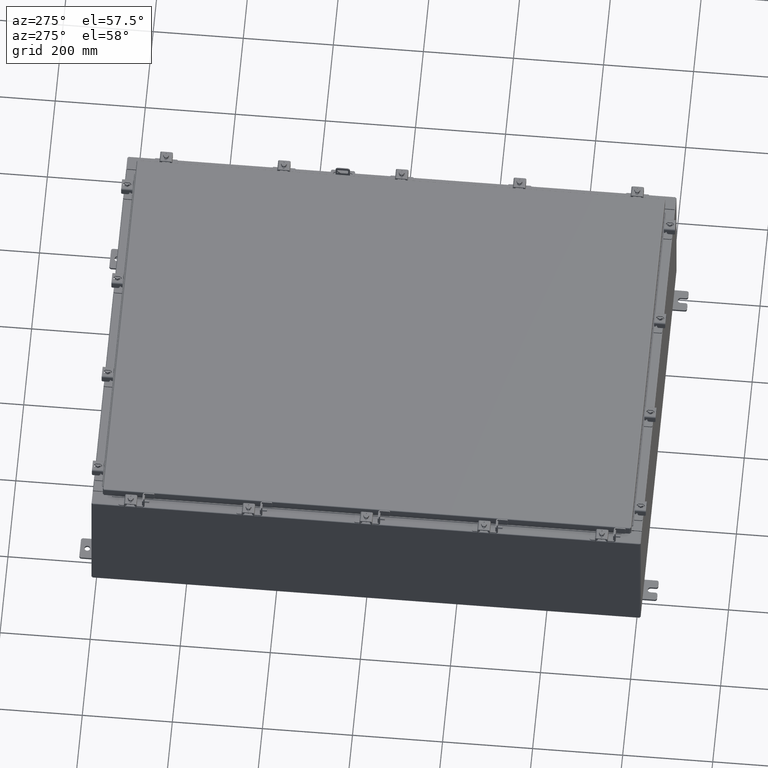
[diagram: clean part render]
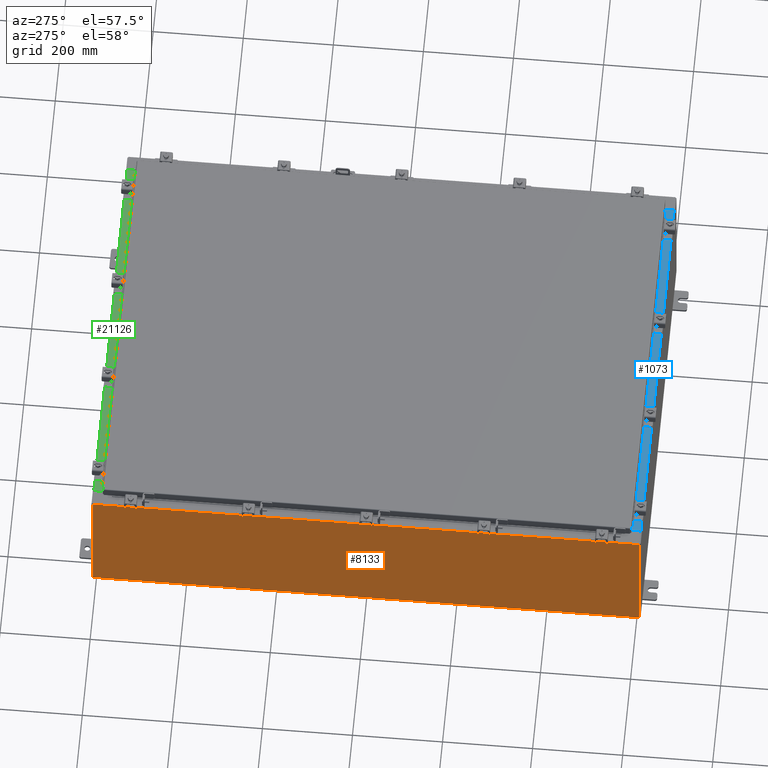
[diagram: same view with three faces highlighted in distinct colors, each labeled with its STEP entity id]
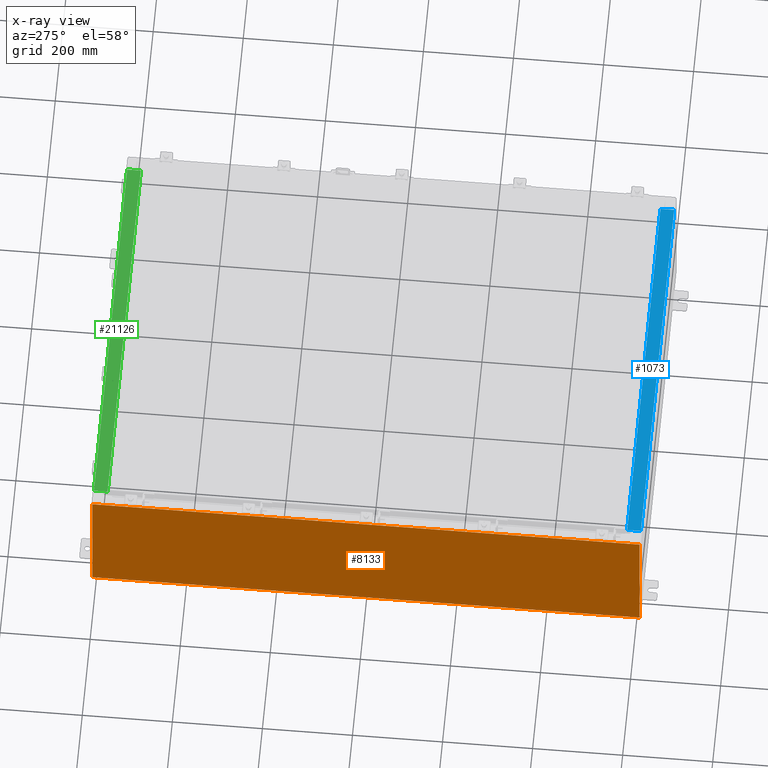
[diagram: x-ray of the same camera — body ghosted, the three highlighted faces saturated]
A machine part, auxiliary view with three faces highlighted in distinct colors.
The next image is the same camera in x-ray (body ghosted, the three faces saturated) — at least one of them is partly hidden behind the body in this view.
Their STEP definitions:

[orange] entity #8133 — the highlighted planar face has unit normal (1, 0, 0).
#45 = CARTESIAN_POINT ( 'NONE',  ( -18.00000000000004600, 23.92529999999998900, 11.83760000000000200 ) ) ;
#607 = CARTESIAN_POINT ( 'NONE',  ( -18.00000000000000400, 23.92529999999998900, -6.293710784286998800E-014 ) ) ;
#1107 = VECTOR ( 'NONE', #2758, 39.37007874015748100 ) ;
#2758 = DIRECTION ( 'NONE',  ( 3.482016343714355500E-015, 0.0000000000000000000, -1.000000000000000000 ) ) ;
#3565 = VECTOR ( 'NONE', #8905, 39.37007874015748100 ) ;
#3626 = VECTOR ( 'NONE', #16057, 39.37007874015748100 ) ;
#6783 = LINE ( 'NONE', #607, #1107 ) ;
#7233 = EDGE_CURVE ( 'NONE', #25267, #20505, #15598, .T. ) ;
#7240 = ORIENTED_EDGE ( 'NONE', *, *, #26393, .T. ) ;
#7644 = ORIENTED_EDGE ( 'NONE', *, *, #20166, .T. ) ;
#8133 = ADVANCED_FACE ( 'NONE', ( #25690 ), #16284, .F. ) ;
#8548 = LINE ( 'NONE', #26541, #14217 ) ;
#8905 = DIRECTION ( 'NONE',  ( -0.0000000000000000000, 1.000000000000000000, -0.0000000000000000000 ) ) ;
#10700 = ORIENTED_EDGE ( 'NONE', *, *, #7233, .T. ) ;
#12404 = CARTESIAN_POINT ( 'NONE',  ( -18.00000000000000400, -23.92529999999998600, 0.01299999999999984700 ) ) ;
#13313 = CARTESIAN_POINT ( 'NONE',  ( -18.00000000000004600, -23.92529999999998600, 11.83760000000000200 ) ) ;
#13987 = VERTEX_POINT ( 'NONE', #12404 ) ;
#14217 = VECTOR ( 'NONE', #18236, 39.37007874015748100 ) ;
#14251 = DIRECTION ( 'NONE',  ( 3.482016343714355100E-015, 0.0000000000000000000, -1.000000000000000000 ) ) ;
#14860 = LINE ( 'NONE', #25751, #3565 ) ;
#15598 = LINE ( 'NONE', #24282, #3626 ) ;
#16057 = DIRECTION ( 'NONE',  ( 0.0000000000000000000, 1.000000000000000000, 0.0000000000000000000 ) ) ;
#16284 = PLANE ( 'NONE',  #17132 ) ;
#17132 = AXIS2_PLACEMENT_3D ( 'NONE', #20517, #26788, #14251 ) ;
#18236 = DIRECTION ( 'NONE',  ( -3.482016343714355500E-015, 0.0000000000000000000, 1.000000000000000000 ) ) ;
#20166 = EDGE_CURVE ( 'NONE', #13987, #25267, #8548, .T. ) ;
#20505 = VERTEX_POINT ( 'NONE', #45 ) ;
#20517 = CARTESIAN_POINT ( 'NONE',  ( -18.00000000000000400, 0.0000000000000000000, -6.293710784286998800E-014 ) ) ;
#20951 = CARTESIAN_POINT ( 'NONE',  ( -18.00000000000000400, 23.92529999999998900, 0.01299999999999984700 ) ) ;
#21968 = EDGE_LOOP ( 'NONE', ( #10700, #7240, #27121, #7644 ) ) ;
#23507 = EDGE_CURVE ( 'NONE', #13987, #25537, #14860, .T. ) ;
#24282 = CARTESIAN_POINT ( 'NONE',  ( -18.00000000000004600, -23.92529999999998900, 11.83760000000000200 ) ) ;
#25267 = VERTEX_POINT ( 'NONE', #13313 ) ;
#25537 = VERTEX_POINT ( 'NONE', #20951 ) ;
#25690 = FACE_OUTER_BOUND ( 'NONE', #21968, .T. ) ;
#25751 = CARTESIAN_POINT ( 'NONE',  ( -18.00000000000000400, 23.92529999999998900, 0.01299999999999984700 ) ) ;
#26393 = EDGE_CURVE ( 'NONE', #20505, #25537, #6783, .T. ) ;
#26541 = CARTESIAN_POINT ( 'NONE',  ( -18.00000000000000400, -23.92529999999999600, -6.293710784286998800E-014 ) ) ;
#26788 = DIRECTION ( 'NONE',  ( 1.000000000000000000, 0.0000000000000000000, 3.482016343714355100E-015 ) ) ;
#27121 = ORIENTED_EDGE ( 'NONE', *, *, #23507, .F. ) ;

[blue] entity #1073 — the highlighted planar face has unit normal (-0, -0, 1).
#131 = FACE_OUTER_BOUND ( 'NONE', #24281, .T. ) ;
#521 = CARTESIAN_POINT ( 'NONE',  ( -16.63719999999999600, -0.08769999999999972300, 5.999999999999999100 ) ) ;
#1073 = ADVANCED_FACE ( 'NONE', ( #131 ), #6994, .T. ) ;
#1385 = DIRECTION ( 'NONE',  ( 0.0000000000000000000, 2.674785894579892700E-015, 1.000000000000000000 ) ) ;
#1614 = VERTEX_POINT ( 'NONE', #22581 ) ;
#2146 = LINE ( 'NONE', #19265, #2831 ) ;
#2831 = VECTOR ( 'NONE', #21356, 39.37007874015748100 ) ;
#3745 = ORIENTED_EDGE ( 'NONE', *, *, #6823, .F. ) ;
#6823 = EDGE_CURVE ( 'NONE', #27214, #27044, #10815, .T. ) ;
#6994 = PLANE ( 'NONE',  #24080 ) ;
#7422 = ORIENTED_EDGE ( 'NONE', *, *, #10181, .F. ) ;
#8981 = CARTESIAN_POINT ( 'NONE',  ( 16.63720000000000400, -1.300299999999999800, 6.000000000000003600 ) ) ;
#10181 = EDGE_CURVE ( 'NONE', #27044, #21892, #2146, .T. ) ;
#10663 = CARTESIAN_POINT ( 'NONE',  ( 16.63720000000000400, -1.287299999999999400, 6.000000000000001800 ) ) ;
#10815 = LINE ( 'NONE', #10663, #11481 ) ;
#11481 = VECTOR ( 'NONE', #25378, 39.37007874015748100 ) ;
#11677 = LINE ( 'NONE', #8981, #12351 ) ;
#11970 = CARTESIAN_POINT ( 'NONE',  ( -5.156971724347648400E-018, -0.08769999999999972300, 5.999999999999999100 ) ) ;
#12351 = VECTOR ( 'NONE', #23725, 39.37007874015748100 ) ;
#14233 = CARTESIAN_POINT ( 'NONE',  ( -2.276882898771239300E-018, 1.610972251716581800E-014, 5.999999999999999100 ) ) ;
#14247 = VECTOR ( 'NONE', #24571, 39.37007874015748100 ) ;
#17470 = EDGE_CURVE ( 'NONE', #1614, #27214, #11677, .T. ) ;
#17943 = CARTESIAN_POINT ( 'NONE',  ( 16.63720000000000400, -1.287299999999999400, 6.000000000000003600 ) ) ;
#19265 = CARTESIAN_POINT ( 'NONE',  ( -16.63719999999999600, -0.07469999999999973900, 5.999999999999999100 ) ) ;
#19340 = CARTESIAN_POINT ( 'NONE',  ( -16.63719999999999600, -1.287299999999998600, 6.000000000000002700 ) ) ;
#19534 = EDGE_CURVE ( 'NONE', #1614, #21892, #21161, .T. ) ;
#20320 = ORIENTED_EDGE ( 'NONE', *, *, #19534, .T. ) ;
#20814 = ORIENTED_EDGE ( 'NONE', *, *, #17470, .F. ) ;
#21161 = LINE ( 'NONE', #11970, #14247 ) ;
#21356 = DIRECTION ( 'NONE',  ( -0.0000000000000000000, 1.000000000000000000, -2.674785894579892700E-015 ) ) ;
#21892 = VERTEX_POINT ( 'NONE', #521 ) ;
#22581 = CARTESIAN_POINT ( 'NONE',  ( 16.63720000000000400, -0.08769999999999948700, 5.999999999999999100 ) ) ;
#23725 = DIRECTION ( 'NONE',  ( -0.0000000000000000000, -1.000000000000000000, 3.566381192773190000E-015 ) ) ;
#24060 = DIRECTION ( 'NONE',  ( 0.0000000000000000000, -1.000000000000000000, 2.674785894579892700E-015 ) ) ;
#24080 = AXIS2_PLACEMENT_3D ( 'NONE', #14233, #1385, #24060 ) ;
#24281 = EDGE_LOOP ( 'NONE', ( #7422, #3745, #20814, #20320 ) ) ;
#24571 = DIRECTION ( 'NONE',  ( -1.000000000000000000, 3.284023746380717400E-017, -8.784060394284559800E-032 ) ) ;
#25378 = DIRECTION ( 'NONE',  ( -1.000000000000000000, 0.0000000000000000000, 0.0000000000000000000 ) ) ;
#27044 = VERTEX_POINT ( 'NONE', #19340 ) ;
#27214 = VERTEX_POINT ( 'NONE', #17943 ) ;

[green] entity #21126 — the highlighted planar face has unit normal (0, 0, 1).
#304 = EDGE_CURVE ( 'NONE', #21248, #24351, #494, .T. ) ;
#494 = LINE ( 'NONE', #15694, #6151 ) ;
#829 = CARTESIAN_POINT ( 'NONE',  ( -16.63719999999999600, -1.287299999999998600, 6.000000000000002700 ) ) ;
#2089 = EDGE_CURVE ( 'NONE', #26187, #24351, #7056, .T. ) ;
#4355 = DIRECTION ( 'NONE',  ( -0.0000000000000000000, -1.000000000000000000, 3.566381192773190000E-015 ) ) ;
#4615 = DIRECTION ( 'NONE',  ( -1.000000000000000000, 0.0000000000000000000, 0.0000000000000000000 ) ) ;
#6151 = VECTOR ( 'NONE', #23976, 39.37007874015748100 ) ;
#6457 = CARTESIAN_POINT ( 'NONE',  ( 16.63720000000000400, -1.300299999999999800, 6.000000000000003600 ) ) ;
#6726 = CARTESIAN_POINT ( 'NONE',  ( 16.63720000000000400, -1.287299999999999400, 6.000000000000001800 ) ) ;
#6795 = CARTESIAN_POINT ( 'NONE',  ( -2.276882898771239300E-018, 1.610972251716581800E-014, 5.999999999999999100 ) ) ;
#6923 = VECTOR ( 'NONE', #4355, 39.37007874015748100 ) ;
#7056 = LINE ( 'NONE', #12118, #12708 ) ;
#7658 = EDGE_CURVE ( 'NONE', #26187, #10195, #23763, .T. ) ;
#8509 = CARTESIAN_POINT ( 'NONE',  ( 16.63720000000000400, -0.08769999999999948700, 5.999999999999999100 ) ) ;
#8678 = AXIS2_PLACEMENT_3D ( 'NONE', #6795, #25778, #13204 ) ;
#9038 = ORIENTED_EDGE ( 'NONE', *, *, #304, .F. ) ;
#10195 = VERTEX_POINT ( 'NONE', #10830 ) ;
#10830 = CARTESIAN_POINT ( 'NONE',  ( 16.63720000000000400, -1.287299999999999400, 6.000000000000003600 ) ) ;
#11060 = PLANE ( 'NONE',  #8678 ) ;
#11386 = ORIENTED_EDGE ( 'NONE', *, *, #18193, .F. ) ;
#12118 = CARTESIAN_POINT ( 'NONE',  ( -5.156971724347648400E-018, -0.08769999999999972300, 5.999999999999999100 ) ) ;
#12708 = VECTOR ( 'NONE', #16387, 39.37007874015748100 ) ;
#13204 = DIRECTION ( 'NONE',  ( 0.0000000000000000000, -1.000000000000000000, 2.674785894579892700E-015 ) ) ;
#13967 = VECTOR ( 'NONE', #4615, 39.37007874015748100 ) ;
#15694 = CARTESIAN_POINT ( 'NONE',  ( -16.63719999999999600, -0.07469999999999973900, 5.999999999999999100 ) ) ;
#16158 = FACE_OUTER_BOUND ( 'NONE', #24453, .T. ) ;
#16387 = DIRECTION ( 'NONE',  ( -1.000000000000000000, 3.284023746380717400E-017, -8.784060394284559800E-032 ) ) ;
#18193 = EDGE_CURVE ( 'NONE', #10195, #21248, #19596, .T. ) ;
#19596 = LINE ( 'NONE', #6726, #13967 ) ;
#21126 = ADVANCED_FACE ( 'NONE', ( #16158 ), #11060, .T. ) ;
#21248 = VERTEX_POINT ( 'NONE', #829 ) ;
#21776 = ORIENTED_EDGE ( 'NONE', *, *, #7658, .F. ) ;
#22267 = ORIENTED_EDGE ( 'NONE', *, *, #2089, .T. ) ;
#23763 = LINE ( 'NONE', #6457, #6923 ) ;
#23976 = DIRECTION ( 'NONE',  ( -0.0000000000000000000, 1.000000000000000000, -2.674785894579892700E-015 ) ) ;
#24077 = CARTESIAN_POINT ( 'NONE',  ( -16.63719999999999600, -0.08769999999999972300, 5.999999999999999100 ) ) ;
#24351 = VERTEX_POINT ( 'NONE', #24077 ) ;
#24453 = EDGE_LOOP ( 'NONE', ( #9038, #11386, #21776, #22267 ) ) ;
#25778 = DIRECTION ( 'NONE',  ( 0.0000000000000000000, 2.674785894579892700E-015, 1.000000000000000000 ) ) ;
#26187 = VERTEX_POINT ( 'NONE', #8509 ) ;